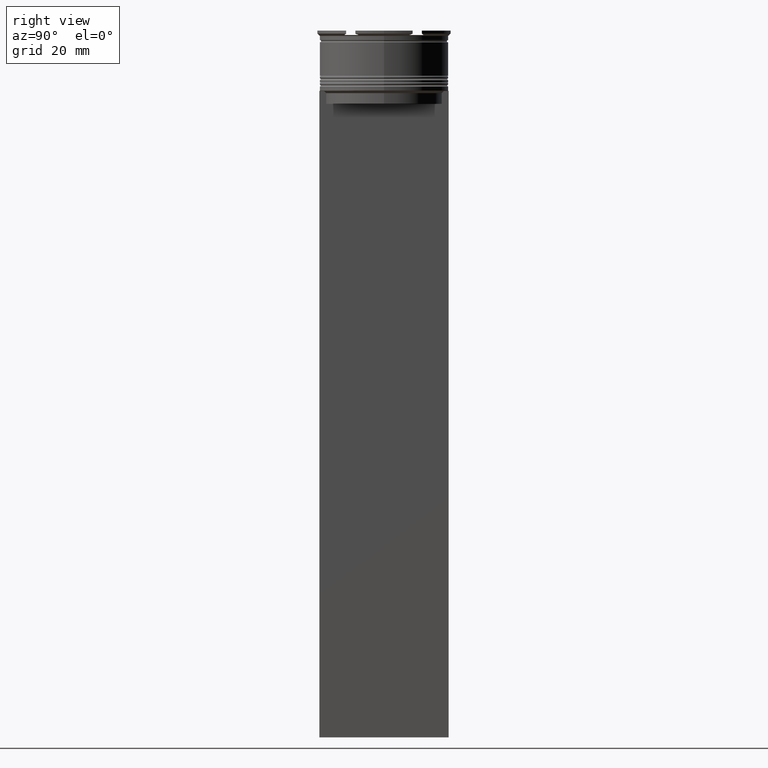
[diagram: clean part render]
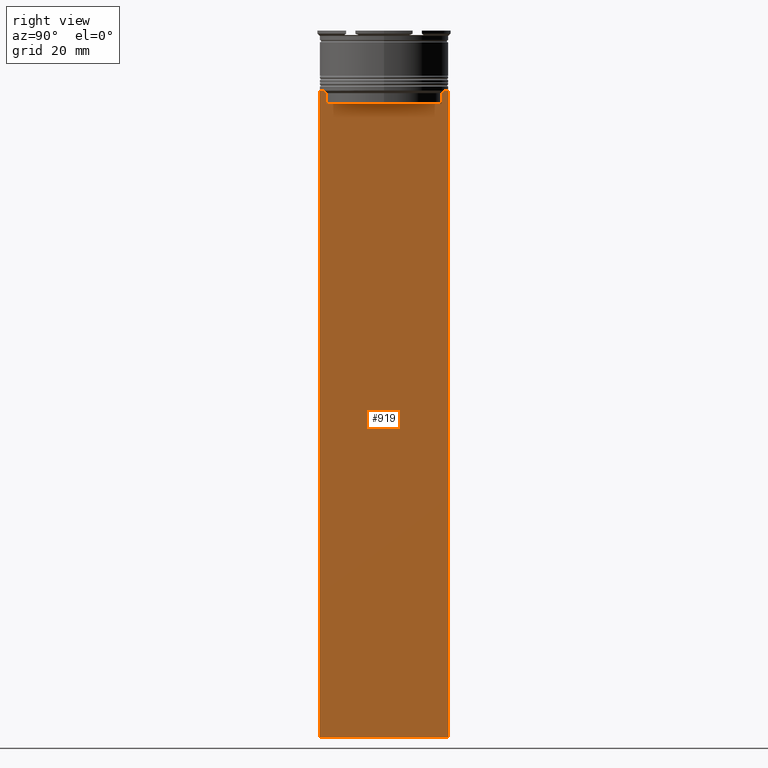
[diagram: same view with one face highlighted and labeled with its STEP entity id]
A machine part, right view. The second image highlights one B-rep face of the part: STEP entity #919.
In plain terms, the highlighted planar face has unit normal (-1, 0, 0).
Its self-contained STEP definition (entity closure, byte-faithful):
#40 = PLANE ( 'NONE',  #758 ) ;
#64 = EDGE_CURVE ( 'NONE', #1940, #824, #1592, .T. ) ;
#65 = CARTESIAN_POINT ( 'NONE',  ( 0.5000000000000001110, -13.89100428334828230, -14.00000000000000178 ) ) ;
#118 = VERTEX_POINT ( 'NONE', #2780 ) ;
#136 = DIRECTION ( 'NONE',  ( 0.000000000000000000, -1.000000000000000000, 0.000000000000000000 ) ) ;
#167 = ORIENTED_EDGE ( 'NONE', *, *, #2748, .T. ) ;
#223 = EDGE_CURVE ( 'NONE', #2306, #1398, #1185, .T. ) ;
#224 = VERTEX_POINT ( 'NONE', #2178 ) ;
#253 = EDGE_LOOP ( 'NONE', ( #1792, #787, #884, #478, #1053, #1830, #621, #167, #1375, #2000, #645, #1006 ) ) ;
#294 = VERTEX_POINT ( 'NONE', #1826 ) ;
#391 = CARTESIAN_POINT ( 'NONE',  ( 0.5000000000000001110, -13.39066839257847263, -14.49999999999999822 ) ) ;
#395 = DIRECTION ( 'NONE',  ( -0.000000000000000000, -0.000000000000000000, 1.000000000000000000 ) ) ;
#409 = DIRECTION ( 'NONE',  ( 0.000000000000000000, -1.000000000000000000, 0.000000000000000000 ) ) ;
#423 = VECTOR ( 'NONE', #2859, 1000.000000000000000 ) ;
#447 = DIRECTION ( 'NONE',  ( 0.000000000000000000, -1.000000000000000000, 0.000000000000000000 ) ) ;
#451 = VERTEX_POINT ( 'NONE', #2119 ) ;
#453 = LINE ( 'NONE', #1341, #2761 ) ;
#460 = CARTESIAN_POINT ( 'NONE',  ( 0.5000000000000001110, -13.89100428334828230, -14.00000000000000178 ) ) ;
#478 = ORIENTED_EDGE ( 'NONE', *, *, #2497, .T. ) ;
#528 = CARTESIAN_POINT ( 'NONE',  ( 0.5000000000000001110, -13.39066839257847263, -14.49999999999999822 ) ) ;
#596 = CARTESIAN_POINT ( 'NONE',  ( 0.5000000000000001110, 13.89100428334828230, -14.00000000000000178 ) ) ;
#621 = ORIENTED_EDGE ( 'NONE', *, *, #1947, .T. ) ;
#645 = ORIENTED_EDGE ( 'NONE', *, *, #1733, .F. ) ;
#650 = CARTESIAN_POINT ( 'NONE',  ( 0.5000000000000001110, -14.89160837518903513, -14.00000000000000178 ) ) ;
#656 = VECTOR ( 'NONE', #2772, 1000.000000000000000 ) ;
#663 = CARTESIAN_POINT ( 'NONE',  ( 0.5000000000000001110, -15.00000000000000355, -14.00000000000000178 ) ) ;
#741 = FACE_OUTER_BOUND ( 'NONE', #253, .T. ) ;
#758 = AXIS2_PLACEMENT_3D ( 'NONE', #2744, #2100, #1202 ) ;
#787 = ORIENTED_EDGE ( 'NONE', *, *, #223, .T. ) ;
#824 = VERTEX_POINT ( 'NONE', #460 ) ;
#842 = EDGE_CURVE ( 'NONE', #294, #118, #2675, .T. ) ;
#843 = LINE ( 'NONE', #1514, #423 ) ;
#863 = CARTESIAN_POINT ( 'NONE',  ( 0.5000000000000001110, 13.39066839257847263, -14.49999999999999822 ) ) ;
#869 = CARTESIAN_POINT ( 'NONE',  ( 0.5000000000000001110, 13.39066839257847263, 0.000000000000000000 ) ) ;
#883 = DIRECTION ( 'NONE',  ( 0.000000000000000000, -1.000000000000000000, 0.000000000000000000 ) ) ;
#884 = ORIENTED_EDGE ( 'NONE', *, *, #1234, .T. ) ;
#918 = CARTESIAN_POINT ( 'NONE',  ( 0.5000000000000001110, 13.40000000000000391, -17.00000000000000000 ) ) ;
#919 = ADVANCED_FACE ( 'NONE', ( #741 ), #40, .F. ) ;
#938 = VECTOR ( 'NONE', #409, 1000.000000000000000 ) ;
#978 = CARTESIAN_POINT ( 'NONE',  ( 0.5000000000000001110, -13.72422766745777167, -14.16666868242427135 ) ) ;
#1000 = DIRECTION ( 'NONE',  ( 0.000000000000000000, 0.000000000000000000, -1.000000000000000000 ) ) ;
#1006 = ORIENTED_EDGE ( 'NONE', *, *, #842, .T. ) ;
#1010 = CARTESIAN_POINT ( 'NONE',  ( 0.5000000000000001110, -15.00000000000000355, 16.01666203960726165 ) ) ;
#1053 = ORIENTED_EDGE ( 'NONE', *, *, #1634, .T. ) ;
#1067 = CARTESIAN_POINT ( 'NONE',  ( 0.5000000000000001110, 13.89100428334828230, -14.00000000000000178 ) ) ;
#1185 = B_SPLINE_CURVE_WITH_KNOTS ( 'NONE', 3,
 ( #596, #1291, #1932, #863 ),
 .UNSPECIFIED., .F., .F.,
 ( 4, 4 ),
 ( 0.02359665025569774102, 0.02430399458637444096 ),
 .UNSPECIFIED. ) ;
#1202 = DIRECTION ( 'NONE',  ( 0.000000000000000000, 0.000000000000000000, 1.000000000000000000 ) ) ;
#1218 = VERTEX_POINT ( 'NONE', #650 ) ;
#1234 = EDGE_CURVE ( 'NONE', #1398, #2444, #1344, .T. ) ;
#1236 = LINE ( 'NONE', #1010, #1595 ) ;
#1291 = CARTESIAN_POINT ( 'NONE',  ( 0.5000000000000001110, 13.72422766736833744, -14.16666868251365052 ) ) ;
#1301 = CARTESIAN_POINT ( 'NONE',  ( 0.5000000000000001110, 13.39066839257847086, -17.00000000000000000 ) ) ;
#1341 = CARTESIAN_POINT ( 'NONE',  ( 0.5000000000000001110, 14.99999999999999645, 16.01666203960726165 ) ) ;
#1344 = LINE ( 'NONE', #869, #1629 ) ;
#1375 = ORIENTED_EDGE ( 'NONE', *, *, #2740, .T. ) ;
#1398 = VERTEX_POINT ( 'NONE', #1421 ) ;
#1421 = CARTESIAN_POINT ( 'NONE',  ( 0.5000000000000001110, 13.39066839257847263, -14.49999999999999822 ) ) ;
#1491 = EDGE_CURVE ( 'NONE', #2044, #2596, #2781, .T. ) ;
#1514 = CARTESIAN_POINT ( 'NONE',  ( 0.5000000000000001110, -15.00000000000000355, -14.00000000000000178 ) ) ;
#1558 = CARTESIAN_POINT ( 'NONE',  ( 0.5000000000000001110, -15.00000000000000355, -14.00000000000000178 ) ) ;
#1582 = EDGE_CURVE ( 'NONE', #118, #2306, #2849, .T. ) ;
#1592 = B_SPLINE_CURVE_WITH_KNOTS ( 'NONE', 3,
 ( #528, #2122, #978, #65 ),
 .UNSPECIFIED., .F., .F.,
 ( 4, 4 ),
 ( 0.06160226316123722928, 0.06231007364084064498 ),
 .UNSPECIFIED. ) ;
#1595 = VECTOR ( 'NONE', #1000, 1000.000000000000000 ) ;
#1629 = VECTOR ( 'NONE', #2854, 1000.000000000000000 ) ;
#1634 = EDGE_CURVE ( 'NONE', #224, #1940, #2446, .T. ) ;
#1733 = EDGE_CURVE ( 'NONE', #294, #2596, #453, .T. ) ;
#1792 = ORIENTED_EDGE ( 'NONE', *, *, #1582, .T. ) ;
#1826 = CARTESIAN_POINT ( 'NONE',  ( 0.5000000000000001110, 14.99999999999999645, -14.00000000000000178 ) ) ;
#1830 = ORIENTED_EDGE ( 'NONE', *, *, #64, .T. ) ;
#1932 = CARTESIAN_POINT ( 'NONE',  ( 0.5000000000000001110, 13.55744911232272543, -14.33333542444994002 ) ) ;
#1940 = VERTEX_POINT ( 'NONE', #391 ) ;
#1947 = EDGE_CURVE ( 'NONE', #824, #1218, #843, .T. ) ;
#1957 = VECTOR ( 'NONE', #395, 1000.000000000000000 ) ;
#1965 = VECTOR ( 'NONE', #883, 1000.000000000000000 ) ;
#2000 = ORIENTED_EDGE ( 'NONE', *, *, #1491, .T. ) ;
#2044 = VERTEX_POINT ( 'NONE', #2881 ) ;
#2100 = DIRECTION ( 'NONE',  ( -1.000000000000000000, 0.000000000000000000, 0.000000000000000000 ) ) ;
#2119 = CARTESIAN_POINT ( 'NONE',  ( 0.5000000000000001110, -15.00000000000000355, -14.00000000000000178 ) ) ;
#2122 = CARTESIAN_POINT ( 'NONE',  ( 0.5000000000000001110, -13.55744911241550099, -14.33333542435722663 ) ) ;
#2135 = CARTESIAN_POINT ( 'NONE',  ( 0.5000000000000001110, -15.00000000000000355, -14.00000000000000178 ) ) ;
#2178 = CARTESIAN_POINT ( 'NONE',  ( 0.5000000000000001110, -13.39066839257847086, -17.00000000000000000 ) ) ;
#2239 = DIRECTION ( 'NONE',  ( 0.000000000000000000, 0.000000000000000000, -1.000000000000000000 ) ) ;
#2273 = CARTESIAN_POINT ( 'NONE',  ( 0.5000000000000001110, 14.99999999999999645, -163.9999999999999716 ) ) ;
#2298 = VECTOR ( 'NONE', #447, 1000.000000000000000 ) ;
#2306 = VERTEX_POINT ( 'NONE', #1067 ) ;
#2444 = VERTEX_POINT ( 'NONE', #1301 ) ;
#2446 = LINE ( 'NONE', #2875, #1957 ) ;
#2497 = EDGE_CURVE ( 'NONE', #2444, #224, #2878, .T. ) ;
#2580 = CARTESIAN_POINT ( 'NONE',  ( 0.5000000000000001110, -15.00000000000000355, -163.9999999999999716 ) ) ;
#2596 = VERTEX_POINT ( 'NONE', #2273 ) ;
#2673 = VECTOR ( 'NONE', #136, 1000.000000000000000 ) ;
#2675 = LINE ( 'NONE', #1558, #2298 ) ;
#2740 = EDGE_CURVE ( 'NONE', #451, #2044, #1236, .T. ) ;
#2744 = CARTESIAN_POINT ( 'NONE',  ( 0.5000000000000001110, -15.00000000000000355, 16.01666203960726165 ) ) ;
#2748 = EDGE_CURVE ( 'NONE', #1218, #451, #2836, .T. ) ;
#2761 = VECTOR ( 'NONE', #2239, 1000.000000000000000 ) ;
#2772 = DIRECTION ( 'NONE',  ( 0.000000000000000000, 1.000000000000000000, 0.000000000000000000 ) ) ;
#2780 = CARTESIAN_POINT ( 'NONE',  ( 0.5000000000000001110, 14.89160837518903513, -14.00000000000000178 ) ) ;
#2781 = LINE ( 'NONE', #2580, #656 ) ;
#2836 = LINE ( 'NONE', #2135, #2673 ) ;
#2849 = LINE ( 'NONE', #663, #938 ) ;
#2854 = DIRECTION ( 'NONE',  ( 0.000000000000000000, 0.000000000000000000, -1.000000000000000000 ) ) ;
#2859 = DIRECTION ( 'NONE',  ( 0.000000000000000000, -1.000000000000000000, 0.000000000000000000 ) ) ;
#2875 = CARTESIAN_POINT ( 'NONE',  ( 0.5000000000000001110, -13.39066839257847263, 0.000000000000000000 ) ) ;
#2878 = LINE ( 'NONE', #918, #1965 ) ;
#2881 = CARTESIAN_POINT ( 'NONE',  ( 0.5000000000000001110, -15.00000000000000355, -163.9999999999999716 ) ) ;